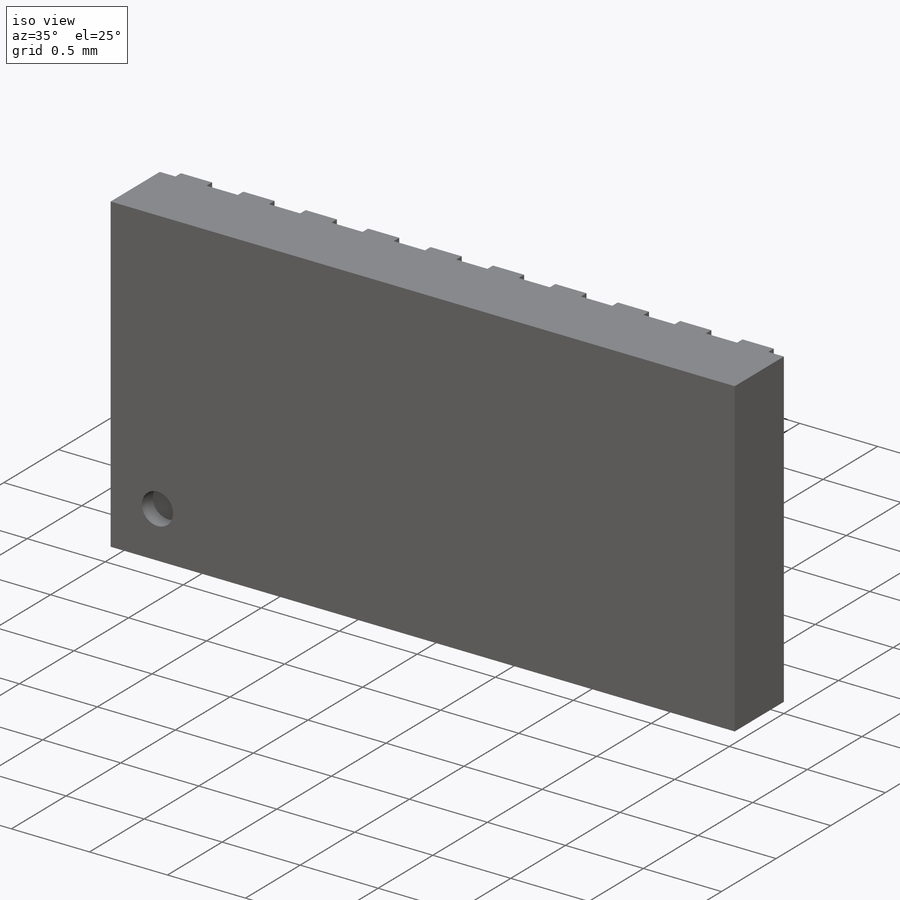
[diagram: iso view]
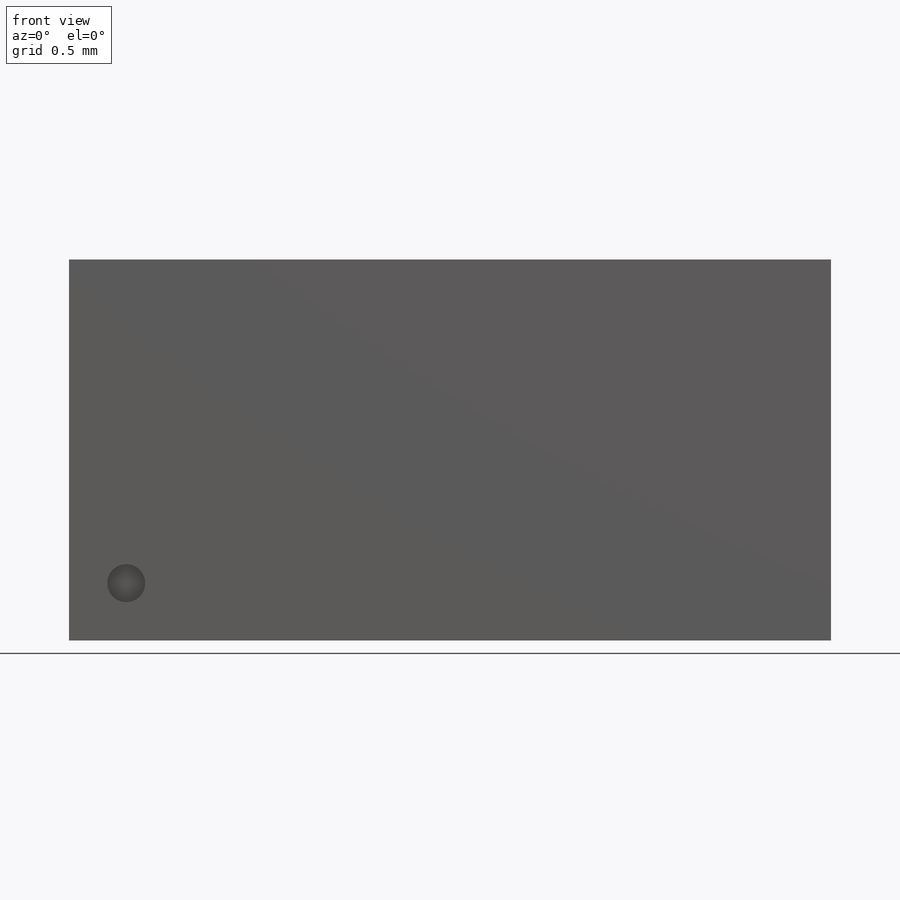
[diagram: front view]
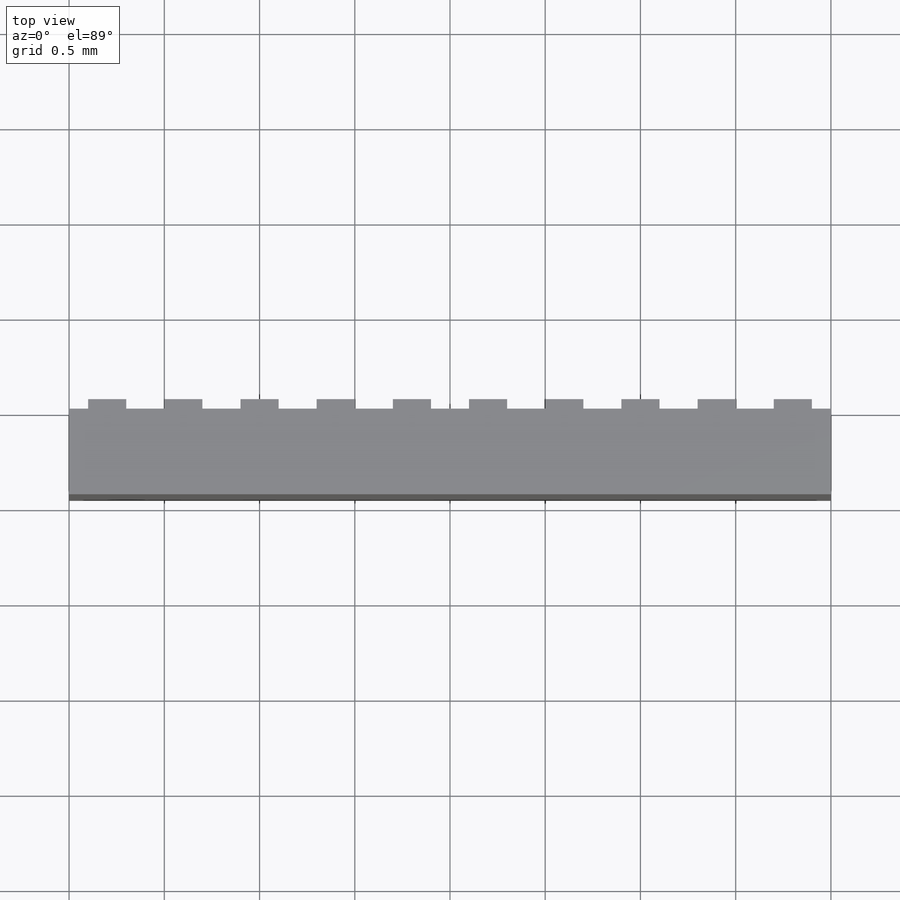
[diagram: top view]
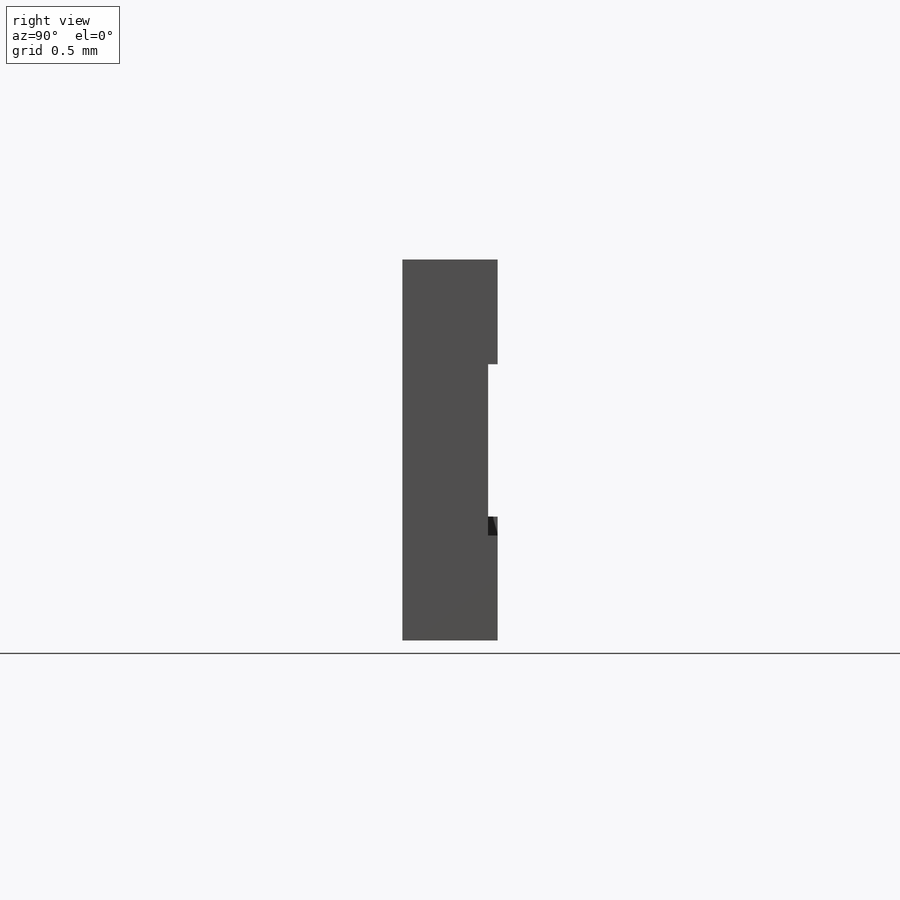
[diagram: right view]
SOLIDWORKS PART (.sldprt)
format: sldprt  version: not decoded by parser v0  size: 261,632 bytes
history: native  units: mm
features: sketch x3, extrude x2, material x1, cut_extrude x1 (+13 scaffold rows collapsed)
feature tree (20):
  scaffold x13  (default folders/planes/origin — collapsed)
  material  "Material <not specified>"
  sketch  "Sketch1"  dims[D1=4.0mm D2=2.0mm]
  extrude  "Boss-Extrude1"  Depth=0.45mm
  sketch  "Sketch2"  dims[c1.D1=0.2mm c1.D2=0.55mm c1.D3=1.8mm c1.D5=3.6mm c1.D6=0.55mm c1.D7=0.65mm c1.D8=~0.193213mm c2.D8=45.0deg c2.D9=0.1mm c2.D4=10.0]
  extrude  "Boss-Extrude2"  Depth=0.05mm
  sketch  "Sketch3"  dims[c1.D1=0.2mm c1.D2=0.3mm c1.D3=0.3mm c1.D4=~0.424264mm c1.D5=0.3mm c1.D6=0.3mm c2.D5=1.7mm c2.D6=1.7mm c3.D5=1.7mm c3.D6=0.3mm c4.D5=1.7mm c4.D3=0.3mm]
  cut_extrude  "Cut-Extrude1"  Depth=0.1mm
decode coverage: 6 of 6 modeling features carry decoded parameters
note: ~ marks probable driven/reference dimensions
note: suppression state not decoded; provenance and decode notes live in map.json
